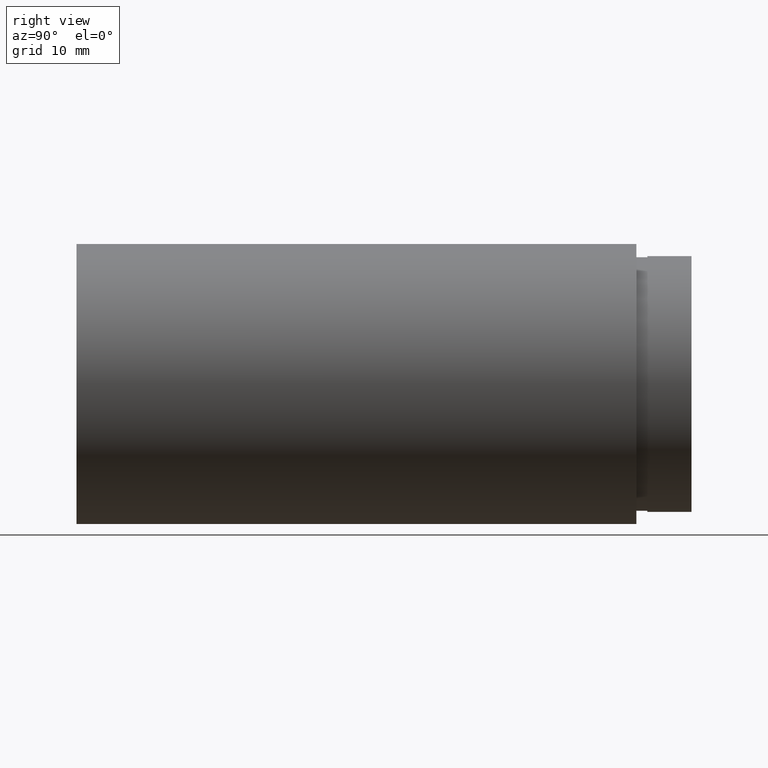
[diagram: clean part render]
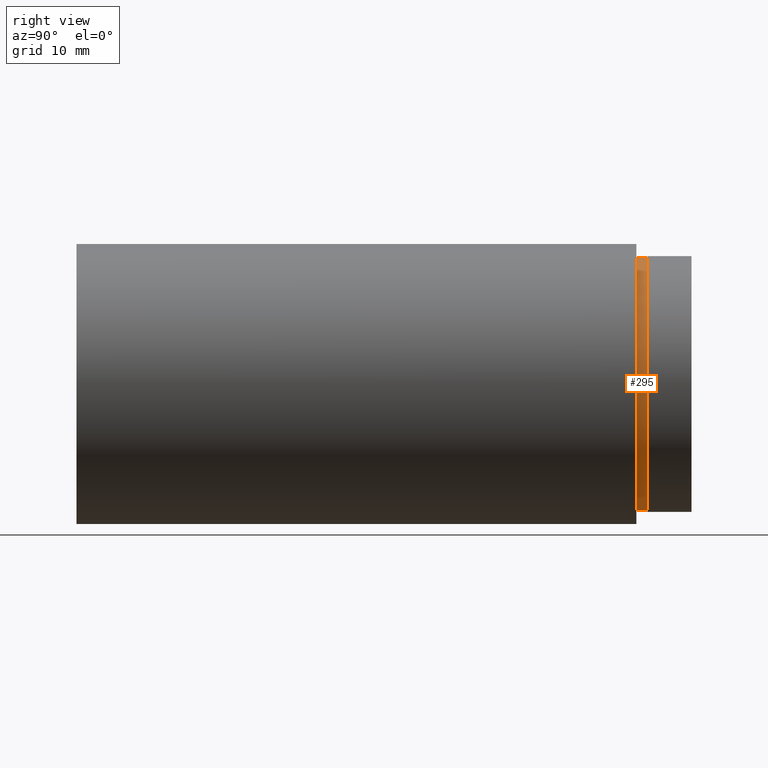
[diagram: same view with one face highlighted and labeled with its STEP entity id]
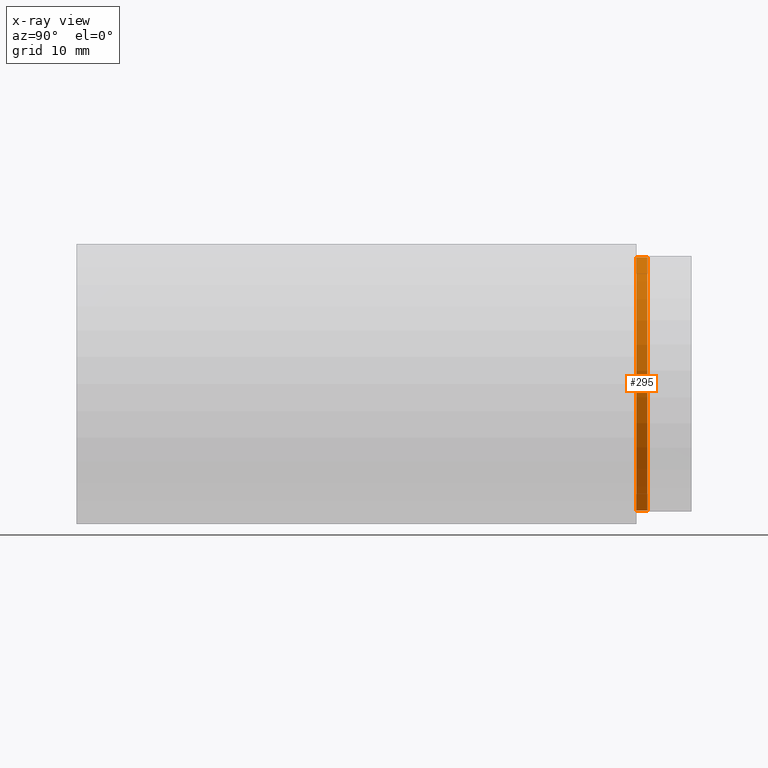
[diagram: x-ray of the same camera — body ghosted, the highlighted face saturated]
A machine part, right view. The second image highlights one B-rep face of the part: STEP entity #295.
The next image is the same camera in x-ray: the body ghosted, the highlighted face saturated — about 0% of this face is hidden behind the body in this view.
In plain terms, the highlighted cylindrical surface (partial cylindrical patch) has radius 11.5 mm, axis along (-0, 1, -0).
Its self-contained STEP definition (entity closure, byte-faithful):
#6 = CYLINDRICAL_SURFACE ( 'NONE', #13, 11.50000000000001200 ) ;
#13 = AXIS2_PLACEMENT_3D ( 'NONE', #87, #282, #422 ) ;
#17 = VERTEX_POINT ( 'NONE', #549 ) ;
#31 = CARTESIAN_POINT ( 'NONE',  ( 1.408343819019457800E-015, 50.79999999999998300, -11.50000000000001200 ) ) ;
#35 = DIRECTION ( 'NONE',  ( -0.0000000000000000000, 1.000000000000000000, -0.0000000000000000000 ) ) ;
#52 = FACE_OUTER_BOUND ( 'NONE', #231, .T. ) ;
#62 = CIRCLE ( 'NONE', #263, 11.50000000000001200 ) ;
#87 = CARTESIAN_POINT ( 'NONE',  ( 0.0000000000000000000, 161.3761669434274500, 0.0000000000000000000 ) ) ;
#104 = VECTOR ( 'NONE', #445, 1000.000000000000000 ) ;
#119 = LINE ( 'NONE', #392, #104 ) ;
#132 = CARTESIAN_POINT ( 'NONE',  ( 0.0000000000000000000, 51.79999999999998300, 11.50000000000001200 ) ) ;
#141 = VERTEX_POINT ( 'NONE', #611 ) ;
#197 = ORIENTED_EDGE ( 'NONE', *, *, #315, .T. ) ;
#204 = DIRECTION ( 'NONE',  ( -0.0000000000000000000, 1.000000000000000000, -0.0000000000000000000 ) ) ;
#225 = CARTESIAN_POINT ( 'NONE',  ( 0.0000000000000000000, 51.79999999999998300, 0.0000000000000000000 ) ) ;
#231 = EDGE_LOOP ( 'NONE', ( #197, #235, #426, #285 ) ) ;
#235 = ORIENTED_EDGE ( 'NONE', *, *, #621, .T. ) ;
#240 = VECTOR ( 'NONE', #204, 1000.000000000000000 ) ;
#263 = AXIS2_PLACEMENT_3D ( 'NONE', #225, #554, #275 ) ;
#275 = DIRECTION ( 'NONE',  ( 0.0000000000000000000, 0.0000000000000000000, 1.000000000000000000 ) ) ;
#282 = DIRECTION ( 'NONE',  ( -0.0000000000000000000, 1.000000000000000000, -0.0000000000000000000 ) ) ;
#285 = ORIENTED_EDGE ( 'NONE', *, *, #607, .F. ) ;
#295 = ADVANCED_FACE ( 'NONE', ( #52 ), #6, .T. ) ;
#299 = VERTEX_POINT ( 'NONE', #132 ) ;
#315 = EDGE_CURVE ( 'NONE', #17, #577, #345, .T. ) ;
#345 = CIRCLE ( 'NONE', #528, 11.50000000000001200 ) ;
#346 = CARTESIAN_POINT ( 'NONE',  ( 0.0000000000000000000, 161.3761669434274500, 11.50000000000001200 ) ) ;
#362 = LINE ( 'NONE', #346, #240 ) ;
#375 = DIRECTION ( 'NONE',  ( 0.0000000000000000000, 0.0000000000000000000, 1.000000000000000000 ) ) ;
#392 = CARTESIAN_POINT ( 'NONE',  ( 1.408343819019457800E-015, 161.3761669434274500, -11.50000000000001200 ) ) ;
#422 = DIRECTION ( 'NONE',  ( 0.0000000000000000000, 0.0000000000000000000, 1.000000000000000000 ) ) ;
#426 = ORIENTED_EDGE ( 'NONE', *, *, #556, .F. ) ;
#445 = DIRECTION ( 'NONE',  ( -0.0000000000000000000, 1.000000000000000000, -0.0000000000000000000 ) ) ;
#528 = AXIS2_PLACEMENT_3D ( 'NONE', #612, #35, #375 ) ;
#549 = CARTESIAN_POINT ( 'NONE',  ( 0.0000000000000000000, 50.79999999999998300, 11.50000000000001200 ) ) ;
#554 = DIRECTION ( 'NONE',  ( -0.0000000000000000000, 1.000000000000000000, -0.0000000000000000000 ) ) ;
#556 = EDGE_CURVE ( 'NONE', #299, #141, #62, .T. ) ;
#577 = VERTEX_POINT ( 'NONE', #31 ) ;
#607 = EDGE_CURVE ( 'NONE', #17, #299, #362, .T. ) ;
#611 = CARTESIAN_POINT ( 'NONE',  ( 1.408343819019457800E-015, 51.79999999999998300, -11.50000000000001200 ) ) ;
#612 = CARTESIAN_POINT ( 'NONE',  ( 0.0000000000000000000, 50.79999999999998300, 0.0000000000000000000 ) ) ;
#621 = EDGE_CURVE ( 'NONE', #577, #141, #119, .T. ) ;